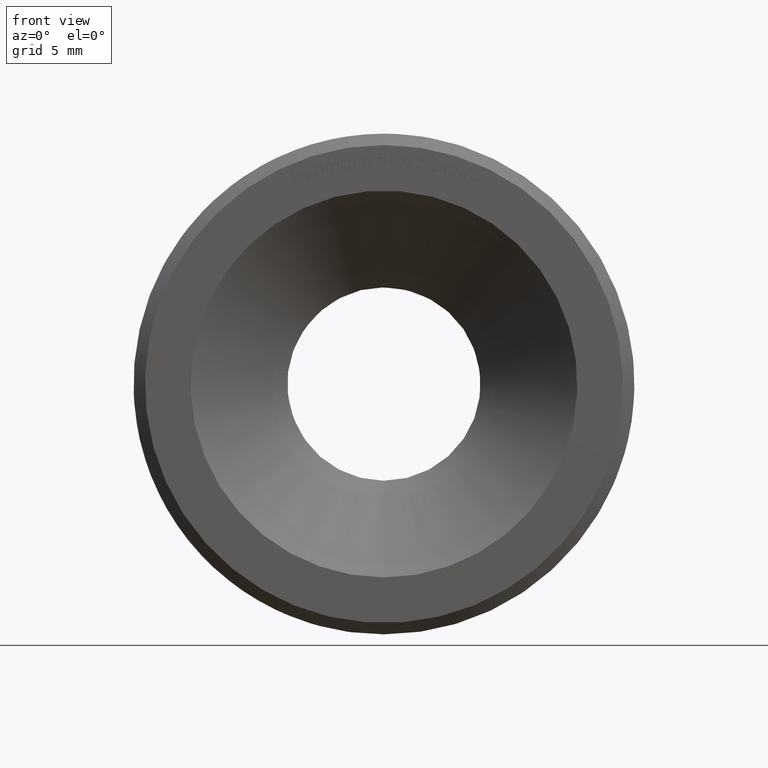
[diagram: clean part render]
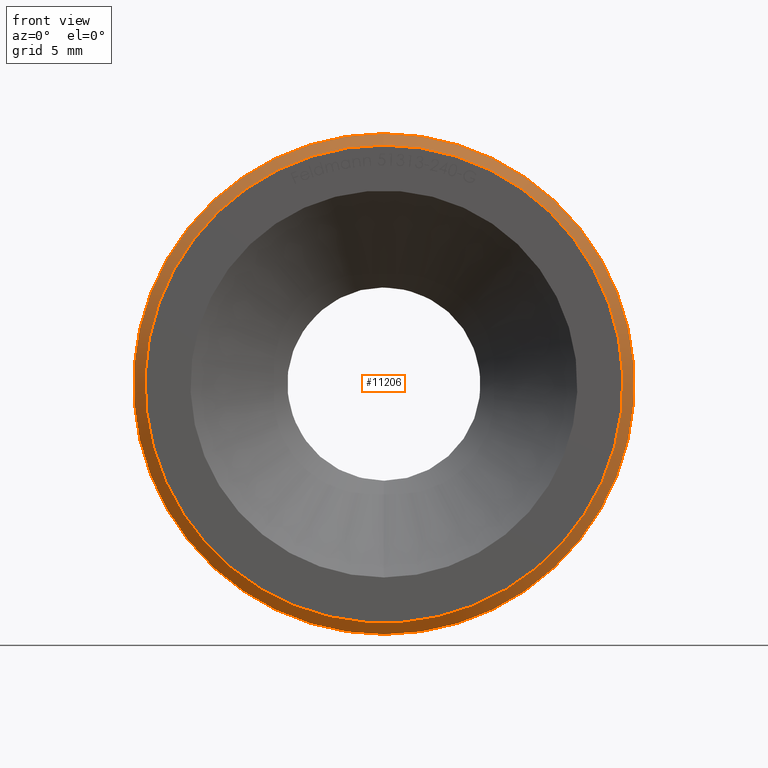
[diagram: same view with one face highlighted and labeled with its STEP entity id]
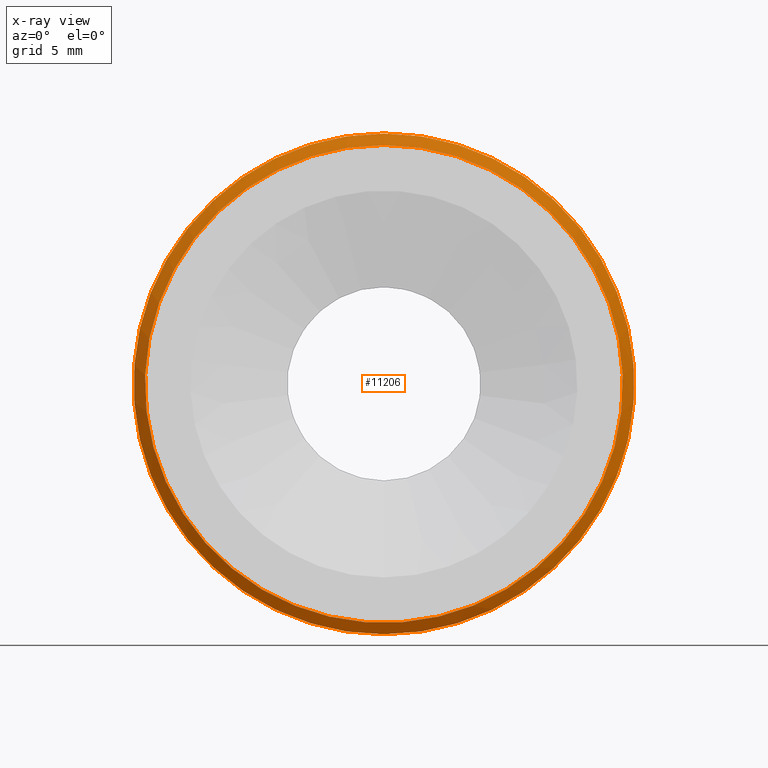
[diagram: x-ray of the same camera — body ghosted, the highlighted face saturated]
A machine part, front view. The second image highlights one B-rep face of the part: STEP entity #11206.
The next image is the same camera in x-ray: the body ghosted, the highlighted face saturated — about 0% of this face is hidden behind the body in this view.
In plain terms, the highlighted conical surface has half-angle 45 deg.
Its self-contained STEP definition (entity closure, byte-faithful):
#71 = AXIS2_PLACEMENT_3D ( 'NONE', #5925, #713, #11199 ) ;
#306 = VERTEX_POINT ( 'NONE', #8703 ) ;
#713 = DIRECTION ( 'NONE',  ( -0.000000000000000000, 1.000000000000000000, -0.000000000000000000 ) ) ;
#1313 = CONICAL_SURFACE ( 'NONE', #71, 11.00000000000000000, 0.7853981633974536081 ) ;
#1729 = DIRECTION ( 'NONE',  ( 0.000000000000000000, 0.000000000000000000, 1.000000000000000000 ) ) ;
#1928 = AXIS2_PLACEMENT_3D ( 'NONE', #2963, #10338, #4027 ) ;
#2579 = AXIS2_PLACEMENT_3D ( 'NONE', #3883, #11195, #1729 ) ;
#2963 = CARTESIAN_POINT ( 'NONE',  ( 0.000000000000000000, 0.000000000000000000, 0.000000000000000000 ) ) ;
#3030 = ORIENTED_EDGE ( 'NONE', *, *, #13095, .F. ) ;
#3883 = CARTESIAN_POINT ( 'NONE',  ( 0.000000000000000000, 0.4999999999999952260, 0.000000000000000000 ) ) ;
#3954 = EDGE_LOOP ( 'NONE', ( #13446 ) ) ;
#4027 = DIRECTION ( 'NONE',  ( 0.000000000000000000, 0.000000000000000000, 1.000000000000000000 ) ) ;
#4303 = CIRCLE ( 'NONE', #1928, 10.49999999999999822 ) ;
#5925 = CARTESIAN_POINT ( 'NONE',  ( 0.000000000000000000, 0.4999999999999952260, 0.000000000000000000 ) ) ;
#8703 = CARTESIAN_POINT ( 'NONE',  ( 0.000000000000000000, 0.4999999999999952260, 11.00000000000000000 ) ) ;
#8745 = CARTESIAN_POINT ( 'NONE',  ( 0.000000000000000000, 0.000000000000000000, 10.49999999999999822 ) ) ;
#9549 = CIRCLE ( 'NONE', #2579, 11.00000000000000000 ) ;
#9886 = VERTEX_POINT ( 'NONE', #8745 ) ;
#10338 = DIRECTION ( 'NONE',  ( -0.000000000000000000, -1.000000000000000000, -0.000000000000000000 ) ) ;
#11195 = DIRECTION ( 'NONE',  ( -0.000000000000000000, 1.000000000000000000, -0.000000000000000000 ) ) ;
#11199 = DIRECTION ( 'NONE',  ( 0.000000000000000000, 0.000000000000000000, 1.000000000000000000 ) ) ;
#11206 = ADVANCED_FACE ( 'NONE', ( #12882, #11398 ), #1313, .T. ) ;
#11398 = FACE_OUTER_BOUND ( 'NONE', #12737, .T. ) ;
#12186 = EDGE_CURVE ( 'NONE', #9886, #9886, #4303, .T. ) ;
#12737 = EDGE_LOOP ( 'NONE', ( #3030 ) ) ;
#12882 = FACE_BOUND ( 'NONE', #3954, .T. ) ;
#13095 = EDGE_CURVE ( 'NONE', #306, #306, #9549, .T. ) ;
#13446 = ORIENTED_EDGE ( 'NONE', *, *, #12186, .F. ) ;